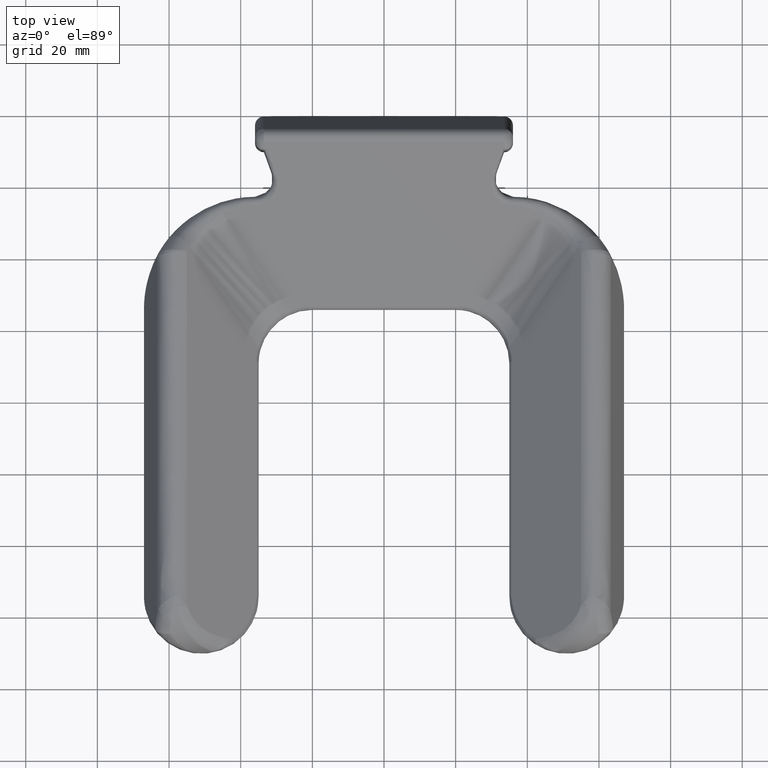
[diagram: clean part render]
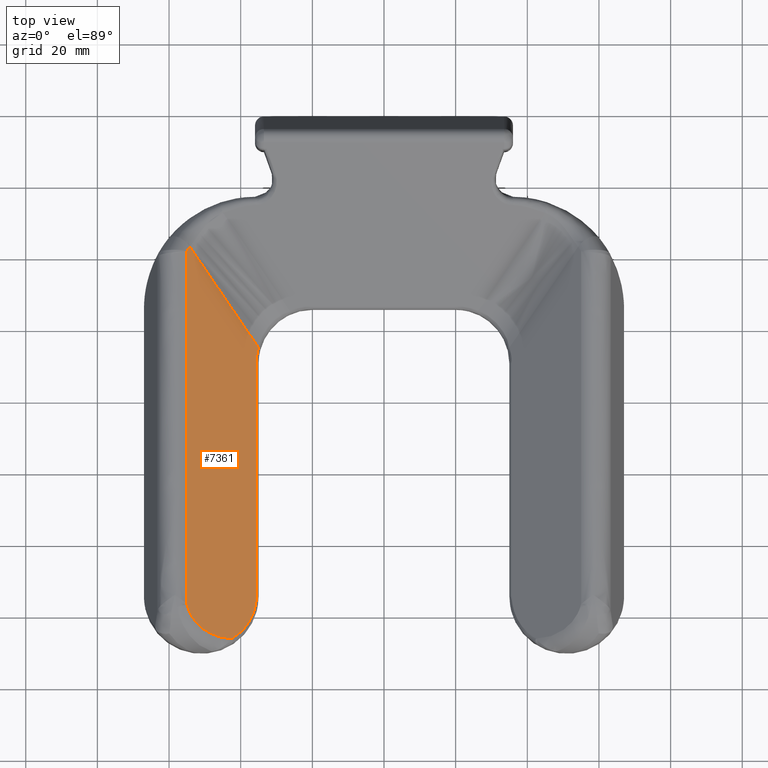
[diagram: same view with one face highlighted and labeled with its STEP entity id]
A machine part, top view. The second image highlights one B-rep face of the part: STEP entity #7361.
In plain terms, the highlighted face is a freeform B-spline surface patch.
Its self-contained STEP definition (entity closure, byte-faithful):
#5829=CARTESIAN_POINT('',(-42.425061246315032,-145.999999556081600,11.922451467733220));
#5830=VERTEX_POINT('',#5829);
#5858=CARTESIAN_POINT('',(-55.011761250494821,-136.524590440720000,23.657145233538049));
#5859=VERTEX_POINT('',#5858);
#5860=CARTESIAN_POINT('',(-55.011761250494743,-136.524590440720000,23.657145233538142));
#5861=CARTESIAN_POINT('',(-52.824005002817678,-146.002636646765580,21.617480381576016));
#5862=CARTESIAN_POINT('',(-42.425061246438418,-145.999999556081600,11.922451467848250));
#5870=(BOUNDED_CURVE()B_SPLINE_CURVE(2,(#5860,#5861,#5862),.UNSPECIFIED.,.F.,.U.)CURVE()GEOMETRIC_REPRESENTATION_ITEM()QUASI_UNIFORM_CURVE()RATIONAL_B_SPLINE_CURVE((1.0,0.777854938992217,1.0))REPRESENTATION_ITEM(''));
#5871=EDGE_CURVE('',#5859,#5830,#5870,.T.);
#6493=CARTESIAN_POINT('',(-35.055829115183712,-64.596068221902598,5.052049986865270));
#6494=VERTEX_POINT('',#6493);
#6495=CARTESIAN_POINT('',(-54.203503197777209,-36.772837091458094,22.903598972068700));
#6496=VERTEX_POINT('',#6495);
#6497=CARTESIAN_POINT('',(-35.055829115183712,-64.596068221902598,5.052049986865270));
#6498=CARTESIAN_POINT('',(-54.203503197777209,-36.772837091458094,22.903598972068700));
#6499=QUASI_UNIFORM_CURVE('',1,(#6497,#6498),.UNSPECIFIED.,.F.,.U.);
#6500=EDGE_CURVE('',#6494,#6496,#6499,.T.);
#7183=CARTESIAN_POINT('',(-55.011761250494807,-38.048559186538391,23.657145233538049));
#7184=VERTEX_POINT('',#7183);
#7185=CARTESIAN_POINT('',(-55.011761250494807,-38.048559186538391,23.657145233538049));
#7186=CARTESIAN_POINT('',(-55.011761250494807,-70.873902937932186,23.657145233538049));
#7187=CARTESIAN_POINT('',(-55.011761250494821,-103.699246689326200,23.657145233538049));
#7188=CARTESIAN_POINT('',(-55.011761250494821,-136.524590440720200,23.657145233538049));
#7189=B_SPLINE_CURVE_WITH_KNOTS('',3,(#7185,#7186,#7187,#7188),.UNSPECIFIED.,.F.,.U.,(4,4),(0.422844436323186,0.596369360584622),.UNSPECIFIED.);
#7190=EDGE_CURVE('',#7184,#5859,#7189,.T.);
#7310=CARTESIAN_POINT('',(-34.059030343703427,-31.316940538053579,4.122725515354212));
#7311=CARTESIAN_POINT('',(-56.008560557234937,-31.316940538053579,24.586470204076630));
#7312=CARTESIAN_POINT('',(-34.059030343703441,-151.455899039186900,4.122725515354212));
#7313=CARTESIAN_POINT('',(-56.008560557234958,-151.455899039186900,24.586470204076630));
#7314=B_SPLINE_SURFACE_WITH_KNOTS('',1,1,((#7310,#7312),(#7311,#7313)),.UNSPECIFIED.,.F.,.F.,.U.,(2,2),(2,2),(0.0,30.009110671260281),(0.0,120.138958501133300),.UNSPECIFIED.);
#7315=ORIENTED_EDGE('',*,*,#5871,.T.);
#7316=CARTESIAN_POINT('',(-35.636164535970707,-134.0,5.593101925985400));
#7317=VERTEX_POINT('',#7316);
#7318=CARTESIAN_POINT('',(-42.425061246315032,-145.999999556081600,11.922451467733220));
#7319=CARTESIAN_POINT('',(-35.636164535970607,-141.920379788405260,5.593101925985171));
#7320=CARTESIAN_POINT('',(-35.636164535970600,-134.0,5.593101925985170));
#7328=(BOUNDED_CURVE()B_SPLINE_CURVE(2,(#7318,#7319,#7320),.UNSPECIFIED.,.F.,.U.)CURVE()GEOMETRIC_REPRESENTATION_ITEM()QUASI_UNIFORM_CURVE()RATIONAL_B_SPLINE_CURVE((1.0,0.870367395530120,1.0))REPRESENTATION_ITEM(''));
#7329=EDGE_CURVE('',#5830,#7317,#7328,.T.);
#7330=ORIENTED_EDGE('',*,*,#7329,.T.);
#7331=CARTESIAN_POINT('',(-35.636164535970707,-69.0,5.593101925985410));
#7332=VERTEX_POINT('',#7331);
#7333=CARTESIAN_POINT('',(-35.636164535970707,-134.0,5.593101925985400));
#7334=CARTESIAN_POINT('',(-35.636164535970707,-69.0,5.593101925985410));
#7335=QUASI_UNIFORM_CURVE('',1,(#7333,#7334),.UNSPECIFIED.,.F.,.U.);
#7336=EDGE_CURVE('',#7317,#7332,#7335,.T.);
#7337=ORIENTED_EDGE('',*,*,#7336,.T.);
#7338=CARTESIAN_POINT('',(-35.636164535970707,-69.0,5.593101925985410));
#7339=CARTESIAN_POINT('',(-35.636164478152047,-66.759796563651264,5.593101872080536));
#7340=CARTESIAN_POINT('',(-35.055829115183613,-64.596068221902769,5.052049986865159));
#7348=(BOUNDED_CURVE()B_SPLINE_CURVE(2,(#7338,#7339,#7340),.UNSPECIFIED.,.F.,.U.)CURVE()GEOMETRIC_REPRESENTATION_ITEM()QUASI_UNIFORM_CURVE()RATIONAL_B_SPLINE_CURVE((1.0,0.991428925589906,1.0))REPRESENTATION_ITEM(''));
#7349=EDGE_CURVE('',#7332,#6494,#7348,.T.);
#7350=ORIENTED_EDGE('',*,*,#7349,.T.);
#7351=ORIENTED_EDGE('',*,*,#6500,.T.);
#7352=CARTESIAN_POINT('',(-54.203503197777209,-36.772837091458094,22.903598972068700));
#7353=CARTESIAN_POINT('',(-54.653570424587222,-37.325423750259823,23.323200700789162));
#7354=CARTESIAN_POINT('',(-55.011761250496200,-38.048559186539812,23.657145233539350));
#7355=QUASI_UNIFORM_CURVE('',2,(#7352,#7353,#7354),.UNSPECIFIED.,.F.,.U.);
#7356=EDGE_CURVE('',#6496,#7184,#7355,.T.);
#7357=ORIENTED_EDGE('',*,*,#7356,.T.);
#7358=ORIENTED_EDGE('',*,*,#7190,.T.);
#7359=EDGE_LOOP('',(#7315,#7330,#7337,#7350,#7351,#7357,#7358));
#7360=FACE_OUTER_BOUND('',#7359,.T.);
#7361=ADVANCED_FACE('',(#7360),#7314,.T.);